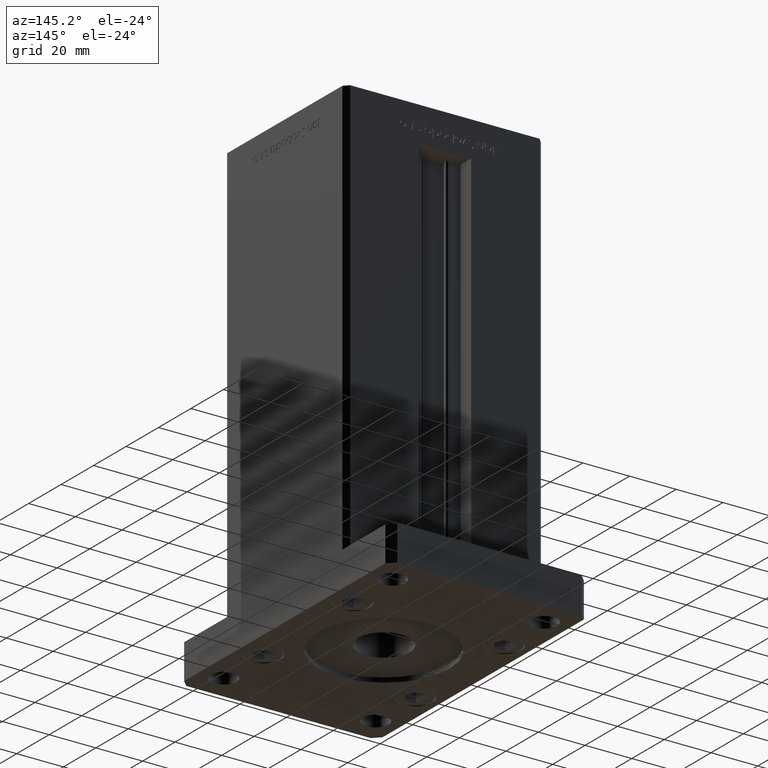
[diagram: clean part render]
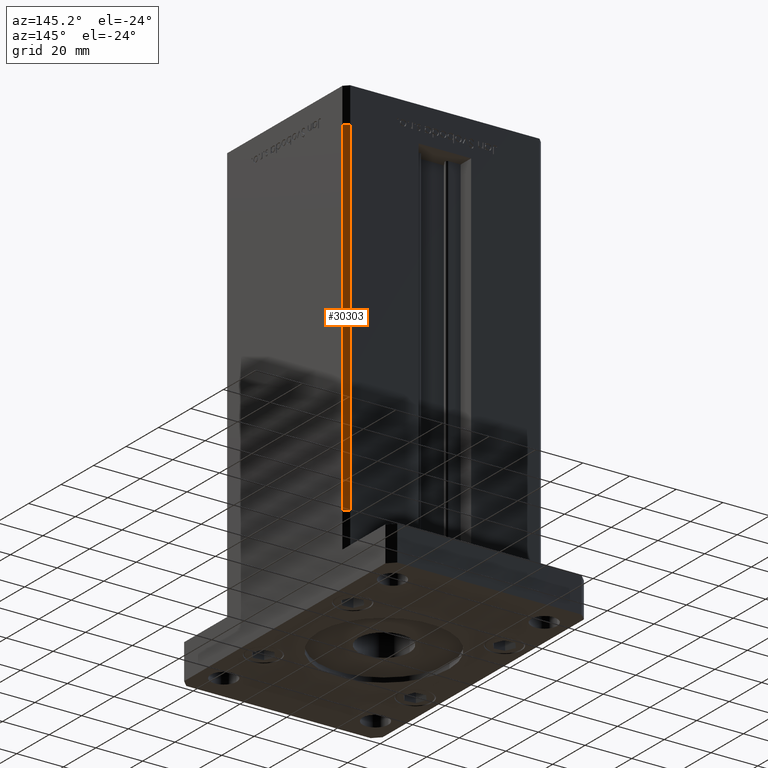
[diagram: same view with one face highlighted and labeled with its STEP entity id]
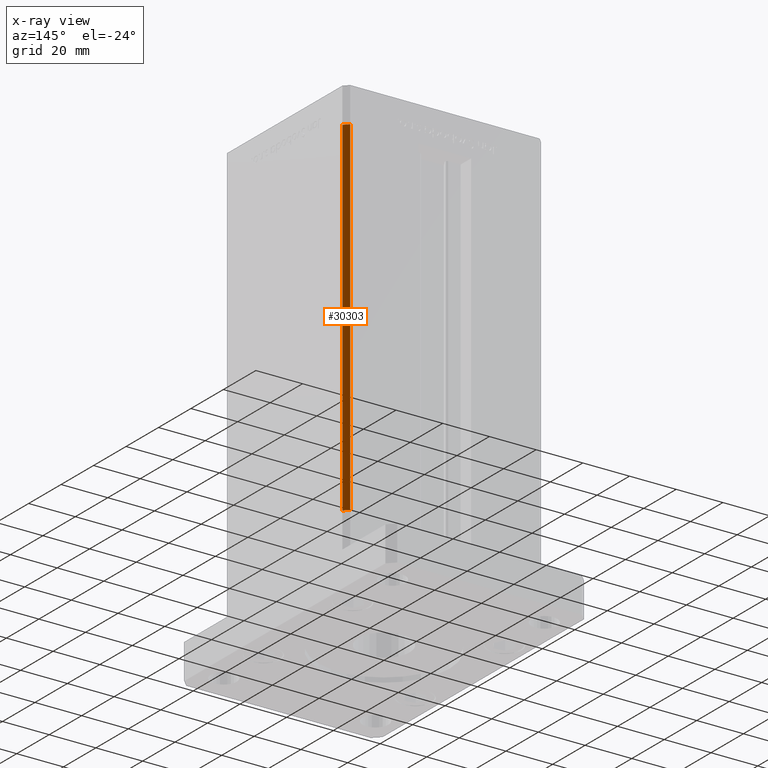
[diagram: x-ray of the same camera — body ghosted, the highlighted face saturated]
A machine part, auxiliary view. The second image highlights one B-rep face of the part: STEP entity #30303.
The next image is the same camera in x-ray: the body ghosted, the highlighted face saturated — about 0% of this face is hidden behind the body in this view.
In plain terms, the highlighted planar face has unit normal (0.7071, 0.7071, 0).
Its self-contained STEP definition (entity closure, byte-faithful):
#1401 = VERTEX_POINT ( 'NONE', #19681 ) ;
#2830 = CARTESIAN_POINT ( 'NONE',  ( 40.50000000000000000, 37.50000000000000711, 0.000000000000000000 ) ) ;
#3583 = DIRECTION ( 'NONE',  ( -0.000000000000000000, -0.000000000000000000, -1.000000000000000000 ) ) ;
#5762 = EDGE_CURVE ( 'NONE', #30338, #1401, #31767, .T. ) ;
#8253 = AXIS2_PLACEMENT_3D ( 'NONE', #38813, #35574, #47177 ) ;
#9956 = CARTESIAN_POINT ( 'NONE',  ( 42.50000000000000711, 35.50000000000001421, 148.5000000000000000 ) ) ;
#13698 = VECTOR ( 'NONE', #40367, 1000.000000000000000 ) ;
#15132 = DIRECTION ( 'NONE',  ( 0.7071067811865500152, -0.7071067811865451302, 0.000000000000000000 ) ) ;
#15473 = CARTESIAN_POINT ( 'NONE',  ( 40.50000000000000000, 37.50000000000000711, 148.5000000000000000 ) ) ;
#19681 = CARTESIAN_POINT ( 'NONE',  ( 42.50000000000000711, 35.50000000000001421, 0.000000000000000000 ) ) ;
#21797 = ORIENTED_EDGE ( 'NONE', *, *, #36601, .F. ) ;
#22352 = CARTESIAN_POINT ( 'NONE',  ( 40.50000000000000000, 37.50000000000000711, 0.000000000000000000 ) ) ;
#22936 = VECTOR ( 'NONE', #15132, 1000.000000000000114 ) ;
#24356 = LINE ( 'NONE', #15473, #50904 ) ;
#25138 = ORIENTED_EDGE ( 'NONE', *, *, #49401, .F. ) ;
#27279 = LINE ( 'NONE', #52063, #22936 ) ;
#27666 = LINE ( 'NONE', #2830, #30871 ) ;
#27988 = CARTESIAN_POINT ( 'NONE',  ( 42.50000000000000711, 35.50000000000001421, 148.5000000000000000 ) ) ;
#29807 = ORIENTED_EDGE ( 'NONE', *, *, #52249, .T. ) ;
#30303 = ADVANCED_FACE ( 'NONE', ( #34771 ), #30735, .T. ) ;
#30338 = VERTEX_POINT ( 'NONE', #9956 ) ;
#30735 = PLANE ( 'NONE',  #8253 ) ;
#30871 = VECTOR ( 'NONE', #39502, 1000.000000000000114 ) ;
#31767 = LINE ( 'NONE', #27988, #13698 ) ;
#34771 = FACE_OUTER_BOUND ( 'NONE', #39131, .T. ) ;
#35574 = DIRECTION ( 'NONE',  ( 0.7071067811865451302, 0.7071067811865500152, -0.000000000000000000 ) ) ;
#36550 = ORIENTED_EDGE ( 'NONE', *, *, #5762, .T. ) ;
#36601 = EDGE_CURVE ( 'NONE', #50854, #1401, #27666, .T. ) ;
#37535 = CARTESIAN_POINT ( 'NONE',  ( 40.50000000000000000, 37.50000000000000711, 148.5000000000000000 ) ) ;
#38813 = CARTESIAN_POINT ( 'NONE',  ( 40.50000000000000000, 37.50000000000000711, 148.5000000000000000 ) ) ;
#39131 = EDGE_LOOP ( 'NONE', ( #21797, #25138, #29807, #36550 ) ) ;
#39502 = DIRECTION ( 'NONE',  ( 0.7071067811865500152, -0.7071067811865451302, 0.000000000000000000 ) ) ;
#40367 = DIRECTION ( 'NONE',  ( -0.000000000000000000, -0.000000000000000000, -1.000000000000000000 ) ) ;
#43416 = VERTEX_POINT ( 'NONE', #37535 ) ;
#47177 = DIRECTION ( 'NONE',  ( -0.7071067811865500152, 0.7071067811865451302, 0.000000000000000000 ) ) ;
#49401 = EDGE_CURVE ( 'NONE', #43416, #50854, #24356, .T. ) ;
#50854 = VERTEX_POINT ( 'NONE', #22352 ) ;
#50904 = VECTOR ( 'NONE', #3583, 1000.000000000000000 ) ;
#52063 = CARTESIAN_POINT ( 'NONE',  ( 40.50000000000000000, 37.50000000000000711, 148.5000000000000000 ) ) ;
#52249 = EDGE_CURVE ( 'NONE', #43416, #30338, #27279, .T. ) ;